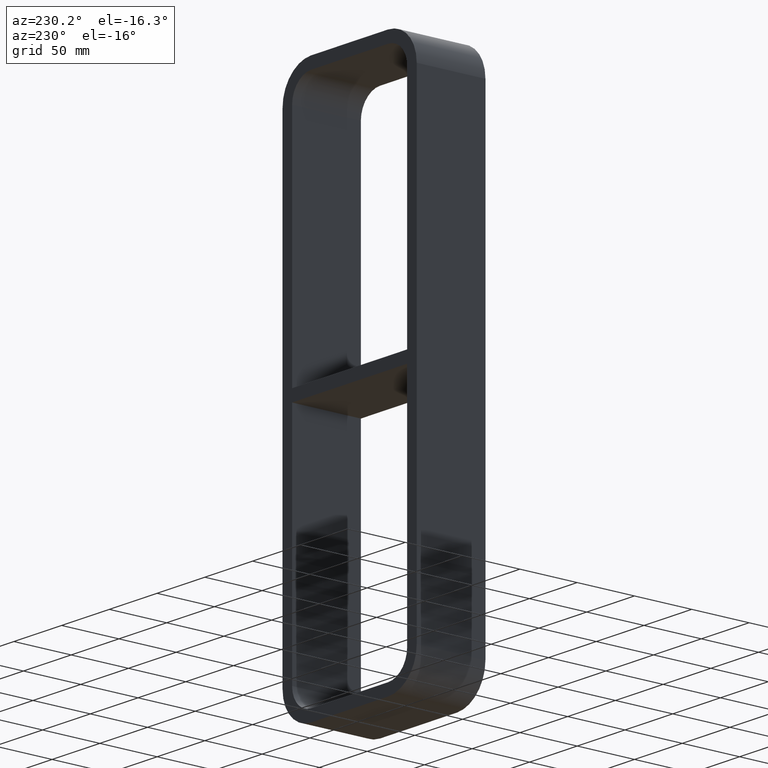
[diagram: clean part render]
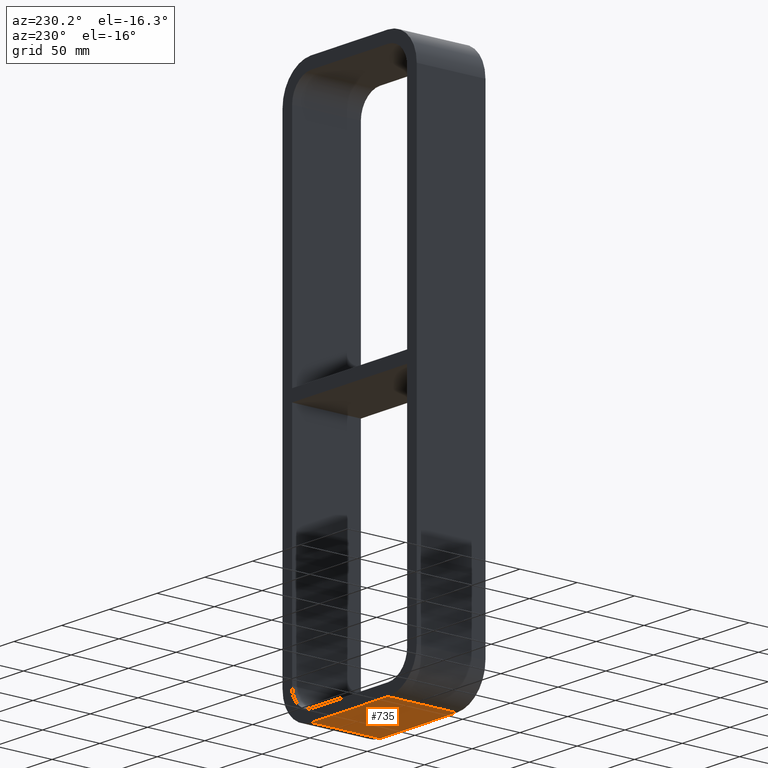
[diagram: same view with one face highlighted and labeled with its STEP entity id]
A machine part, auxiliary view. The second image highlights one B-rep face of the part: STEP entity #735.
In plain terms, the highlighted planar face has unit normal (0, 0, -1).
Its self-contained STEP definition (entity closure, byte-faithful):
#246=CARTESIAN_POINT('',(40.25,57.0,-233.00000000000006));
#247=VERTEX_POINT('',#246);
#265=CARTESIAN_POINT('',(40.25,-3.0,-233.00000000000006));
#266=VERTEX_POINT('',#265);
#274=CARTESIAN_POINT('',(40.25,-3.0,-233.00000000000006));
#275=DIRECTION('',(0.0,1.0,0.0));
#276=VECTOR('',#275,60.0);
#277=LINE('',#274,#276);
#278=EDGE_CURVE('',#266,#247,#277,.T.);
#331=CARTESIAN_POINT('',(-40.25,-3.0,-233.00000000000006));
#332=VERTEX_POINT('',#331);
#340=CARTESIAN_POINT('',(-40.25,-3.0,-233.00000000000006));
#341=DIRECTION('',(1.0,0.0,0.0));
#342=VECTOR('',#341,80.5);
#343=LINE('',#340,#342);
#344=EDGE_CURVE('',#332,#266,#343,.T.);
#470=CARTESIAN_POINT('',(-40.25,57.0,-233.00000000000006));
#471=VERTEX_POINT('',#470);
#479=CARTESIAN_POINT('',(-40.25,57.0,-233.00000000000006));
#480=DIRECTION('',(0.0,-1.0,0.0));
#481=VECTOR('',#480,60.0);
#482=LINE('',#479,#481);
#483=EDGE_CURVE('',#471,#332,#482,.T.);
#719=CARTESIAN_POINT('',(70.25,0.0,-233.00000000000006));
#720=DIRECTION('',(0.0,0.0,-1.0));
#721=DIRECTION('',(-1.0,0.0,0.0));
#722=AXIS2_PLACEMENT_3D('',#719,#720,#721);
#723=PLANE('',#722);
#724=ORIENTED_EDGE('',*,*,#278,.F.);
#725=ORIENTED_EDGE('',*,*,#344,.F.);
#726=ORIENTED_EDGE('',*,*,#483,.F.);
#727=CARTESIAN_POINT('',(40.25,57.0,-233.00000000000006));
#728=DIRECTION('',(-1.0,0.0,0.0));
#729=VECTOR('',#728,80.5);
#730=LINE('',#727,#729);
#731=EDGE_CURVE('',#247,#471,#730,.T.);
#732=ORIENTED_EDGE('',*,*,#731,.F.);
#733=EDGE_LOOP('',(#724,#725,#726,#732));
#734=FACE_OUTER_BOUND('',#733,.T.);
#735=ADVANCED_FACE('',(#734),#723,.T.);